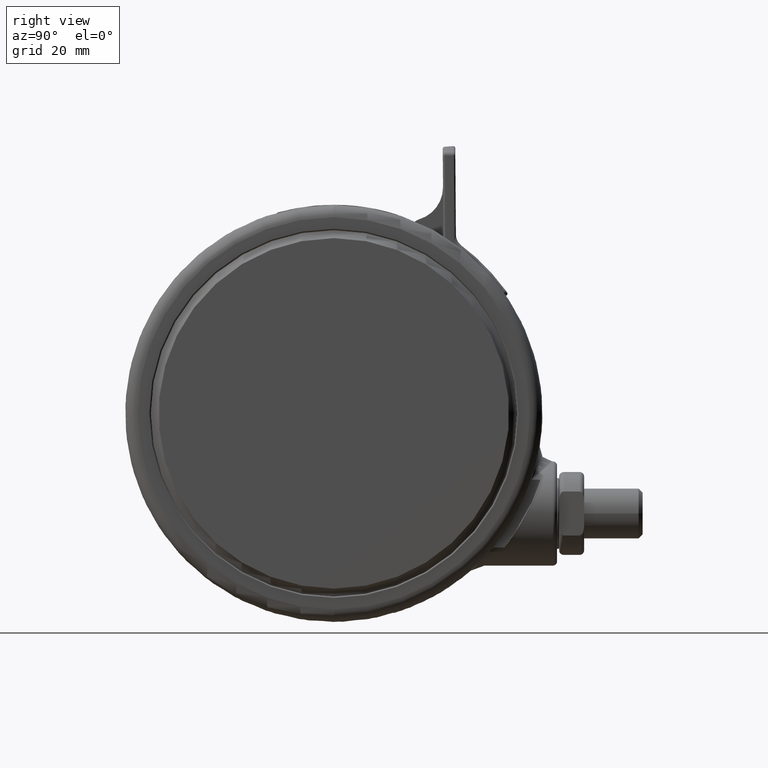
[diagram: clean part render]
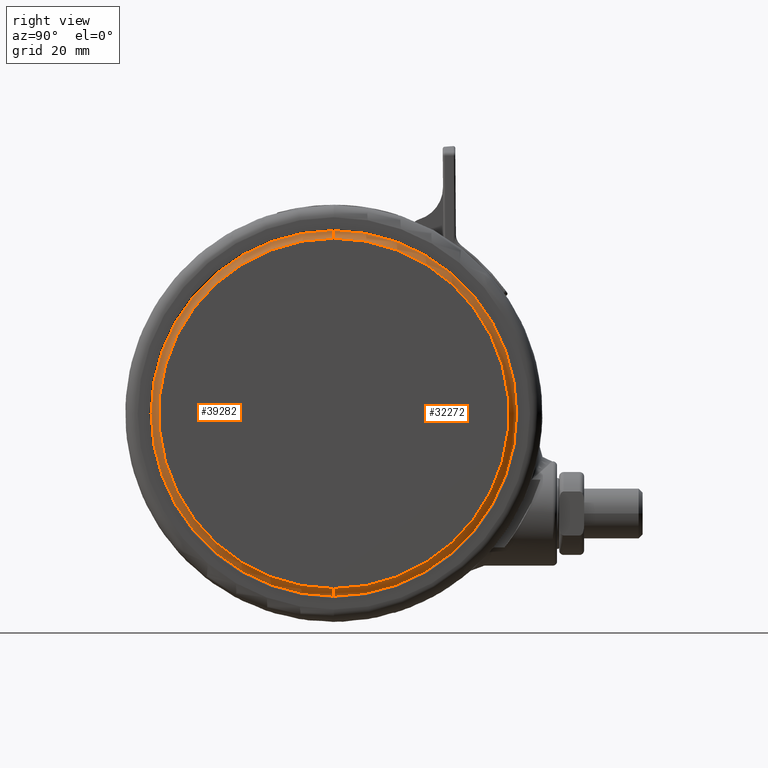
[diagram: same view with one multi-face feature highlighted, each face labeled with its STEP entity id]
A machine part, right view. The highlighted faces form ONE feature: a constant-radius fillet chain: 2 tangent blend faces with common blend radius 2.0507 mm. The faces share edges in the B-rep.
Their STEP definitions:
[1] entity #39282 (Torus):
#1185 = AXIS2_PLACEMENT_3D ( 'NONE', #8092, #34438, #11882 ) ;
#1803 = ORIENTED_EDGE ( 'NONE', *, *, #30910, .F. ) ;
#3136 = VERTEX_POINT ( 'NONE', #32050 ) ;
#5030 = CARTESIAN_POINT ( 'NONE',  ( 44.04999999999999700, 0.0000000000000000000, -0.05476190476190339500 ) ) ;
#6708 = VERTEX_POINT ( 'NONE', #7391 ) ;
#7391 = CARTESIAN_POINT ( 'NONE',  ( 41.99926869965538100, 0.0000000000000000000, -0.05476190476190365100 ) ) ;
#7970 = FACE_OUTER_BOUND ( 'NONE', #36847, .T. ) ;
#8092 = CARTESIAN_POINT ( 'NONE',  ( 0.0000000000000000000, 0.0000000000000000000, -0.05476190476190365100 ) ) ;
#8799 = DIRECTION ( 'NONE',  ( 0.0000000000000000000, 0.0000000000000000000, -1.000000000000000000 ) ) ;
#9342 = ORIENTED_EDGE ( 'NONE', *, *, #13686, .T. ) ;
#11097 = CARTESIAN_POINT ( 'NONE',  ( -44.04999999999999700, 5.394569150244090700E-015, -0.05476190476190339500 ) ) ;
#11882 = DIRECTION ( 'NONE',  ( 1.000000000000000000, 0.0000000000000000000, 0.0000000000000000000 ) ) ;
#12085 = CARTESIAN_POINT ( 'NONE',  ( 0.0000000000000000000, 0.0000000000000000000, -2.091591727423864900 ) ) ;
#13686 = EDGE_CURVE ( 'NONE', #6708, #17671, #43033, .T. ) ;
#14878 = DIRECTION ( 'NONE',  ( -1.000000000000000000, 1.224646799147356900E-016, 0.0000000000000000000 ) ) ;
#15856 = DIRECTION ( 'NONE',  ( 1.000000000000000000, 0.0000000000000000000, 0.0000000000000000000 ) ) ;
#16818 = TOROIDAL_SURFACE ( 'NONE', #30435, 44.04999999999999700, 2.050731300344620100 ) ;
#17671 = VERTEX_POINT ( 'NONE', #24943 ) ;
#18741 = AXIS2_PLACEMENT_3D ( 'NONE', #12085, #38457, #15856 ) ;
#24943 = CARTESIAN_POINT ( 'NONE',  ( 43.81162395316311400, 0.0000000000000000000, -2.091591727423864900 ) ) ;
#29445 = CARTESIAN_POINT ( 'NONE',  ( 0.0000000000000000000, 0.0000000000000000000, -0.05476190476190339500 ) ) ;
#30435 = AXIS2_PLACEMENT_3D ( 'NONE', #29445, #37054, #33387 ) ;
#30910 = EDGE_CURVE ( 'NONE', #6708, #3136, #34020, .T. ) ;
#31377 = DIRECTION ( 'NONE',  ( 0.0000000000000000000, -1.000000000000000000, 0.0000000000000000000 ) ) ;
#32050 = CARTESIAN_POINT ( 'NONE',  ( -41.99926869965538100, 5.143426997956257600E-015, -0.05476190476190365100 ) ) ;
#33387 = DIRECTION ( 'NONE',  ( 1.000000000000000000, 0.0000000000000000000, 0.0000000000000000000 ) ) ;
#34020 = CIRCLE ( 'NONE', #1185, 41.99926869965538100 ) ;
#34438 = DIRECTION ( 'NONE',  ( 0.0000000000000000000, 0.0000000000000000000, 1.000000000000000000 ) ) ;
#35301 = AXIS2_PLACEMENT_3D ( 'NONE', #5030, #31377, #8799 ) ;
#36153 = ORIENTED_EDGE ( 'NONE', *, *, #47475, .T. ) ;
#36847 = EDGE_LOOP ( 'NONE', ( #1803, #9342, #36153, #46437 ) ) ;
#37054 = DIRECTION ( 'NONE',  ( 0.0000000000000000000, 0.0000000000000000000, 1.000000000000000000 ) ) ;
#37285 = CIRCLE ( 'NONE', #18741, 43.81162395321010200 ) ;
#37479 = DIRECTION ( 'NONE',  ( 1.224646799147353200E-016, 1.000000000000000000, -0.0000000000000000000 ) ) ;
#38457 = DIRECTION ( 'NONE',  ( 0.0000000000000000000, 0.0000000000000000000, 1.000000000000000000 ) ) ;
#38589 = CIRCLE ( 'NONE', #46217, 2.050731300344617500 ) ;
#39282 = ADVANCED_FACE ( 'NONE', ( #7970 ), #16818, .F. ) ;
#39924 = EDGE_CURVE ( 'NONE', #3136, #42596, #38589, .T. ) ;
#42596 = VERTEX_POINT ( 'NONE', #46019 ) ;
#43033 = CIRCLE ( 'NONE', #35301, 2.050731300344620100 ) ;
#46019 = CARTESIAN_POINT ( 'NONE',  ( -43.81162395316311400, 5.365376503968872300E-015, -2.091591727423864900 ) ) ;
#46217 = AXIS2_PLACEMENT_3D ( 'NONE', #11097, #37479, #14878 ) ;
#46437 = ORIENTED_EDGE ( 'NONE', *, *, #39924, .F. ) ;
#47475 = EDGE_CURVE ( 'NONE', #17671, #42596, #37285, .T. ) ;
[2] entity #32272 (Torus):
#3136 = VERTEX_POINT ( 'NONE', #32050 ) ;
#5030 = CARTESIAN_POINT ( 'NONE',  ( 44.04999999999999700, 0.0000000000000000000, -0.05476190476190339500 ) ) ;
#6708 = VERTEX_POINT ( 'NONE', #7391 ) ;
#7087 = CIRCLE ( 'NONE', #36950, 41.99926869965538100 ) ;
#7329 = ORIENTED_EDGE ( 'NONE', *, *, #34118, .T. ) ;
#7391 = CARTESIAN_POINT ( 'NONE',  ( 41.99926869965538100, 0.0000000000000000000, -0.05476190476190365100 ) ) ;
#8799 = DIRECTION ( 'NONE',  ( 0.0000000000000000000, 0.0000000000000000000, -1.000000000000000000 ) ) ;
#9153 = AXIS2_PLACEMENT_3D ( 'NONE', #23924, #16352, #27730 ) ;
#9272 = DIRECTION ( 'NONE',  ( 0.0000000000000000000, 0.0000000000000000000, 1.000000000000000000 ) ) ;
#11097 = CARTESIAN_POINT ( 'NONE',  ( -44.04999999999999700, 5.394569150244090700E-015, -0.05476190476190339500 ) ) ;
#12198 = EDGE_LOOP ( 'NONE', ( #18514, #12791, #7329, #41326 ) ) ;
#12791 = ORIENTED_EDGE ( 'NONE', *, *, #39924, .T. ) ;
#13568 = CARTESIAN_POINT ( 'NONE',  ( 0.0000000000000000000, 0.0000000000000000000, -2.091591727423864900 ) ) ;
#13686 = EDGE_CURVE ( 'NONE', #6708, #17671, #43033, .T. ) ;
#14878 = DIRECTION ( 'NONE',  ( -1.000000000000000000, 1.224646799147356900E-016, 0.0000000000000000000 ) ) ;
#16352 = DIRECTION ( 'NONE',  ( 0.0000000000000000000, 0.0000000000000000000, 1.000000000000000000 ) ) ;
#17383 = DIRECTION ( 'NONE',  ( 1.000000000000000000, 0.0000000000000000000, 0.0000000000000000000 ) ) ;
#17671 = VERTEX_POINT ( 'NONE', #24943 ) ;
#18514 = ORIENTED_EDGE ( 'NONE', *, *, #36332, .F. ) ;
#20104 = AXIS2_PLACEMENT_3D ( 'NONE', #13568, #39962, #17383 ) ;
#23924 = CARTESIAN_POINT ( 'NONE',  ( 0.0000000000000000000, 0.0000000000000000000, -0.05476190476190339500 ) ) ;
#24943 = CARTESIAN_POINT ( 'NONE',  ( 43.81162395316311400, 0.0000000000000000000, -2.091591727423864900 ) ) ;
#26054 = CIRCLE ( 'NONE', #20104, 43.81162395321010200 ) ;
#27434 = TOROIDAL_SURFACE ( 'NONE', #9153, 44.04999999999999700, 2.050731300344620100 ) ;
#27730 = DIRECTION ( 'NONE',  ( 1.000000000000000000, 0.0000000000000000000, 0.0000000000000000000 ) ) ;
#31377 = DIRECTION ( 'NONE',  ( 0.0000000000000000000, -1.000000000000000000, 0.0000000000000000000 ) ) ;
#31838 = CARTESIAN_POINT ( 'NONE',  ( 0.0000000000000000000, 0.0000000000000000000, -0.05476190476190365100 ) ) ;
#32050 = CARTESIAN_POINT ( 'NONE',  ( -41.99926869965538100, 5.143426997956257600E-015, -0.05476190476190365100 ) ) ;
#32272 = ADVANCED_FACE ( 'NONE', ( #36288 ), #27434, .F. ) ;
#34118 = EDGE_CURVE ( 'NONE', #42596, #17671, #26054, .T. ) ;
#35301 = AXIS2_PLACEMENT_3D ( 'NONE', #5030, #31377, #8799 ) ;
#35659 = DIRECTION ( 'NONE',  ( 1.000000000000000000, 0.0000000000000000000, 0.0000000000000000000 ) ) ;
#36288 = FACE_OUTER_BOUND ( 'NONE', #12198, .T. ) ;
#36332 = EDGE_CURVE ( 'NONE', #3136, #6708, #7087, .T. ) ;
#36950 = AXIS2_PLACEMENT_3D ( 'NONE', #31838, #9272, #35659 ) ;
#37479 = DIRECTION ( 'NONE',  ( 1.224646799147353200E-016, 1.000000000000000000, -0.0000000000000000000 ) ) ;
#38589 = CIRCLE ( 'NONE', #46217, 2.050731300344617500 ) ;
#39924 = EDGE_CURVE ( 'NONE', #3136, #42596, #38589, .T. ) ;
#39962 = DIRECTION ( 'NONE',  ( 0.0000000000000000000, 0.0000000000000000000, 1.000000000000000000 ) ) ;
#41326 = ORIENTED_EDGE ( 'NONE', *, *, #13686, .F. ) ;
#42596 = VERTEX_POINT ( 'NONE', #46019 ) ;
#43033 = CIRCLE ( 'NONE', #35301, 2.050731300344620100 ) ;
#46019 = CARTESIAN_POINT ( 'NONE',  ( -43.81162395316311400, 5.365376503968872300E-015, -2.091591727423864900 ) ) ;
#46217 = AXIS2_PLACEMENT_3D ( 'NONE', #11097, #37479, #14878 ) ;